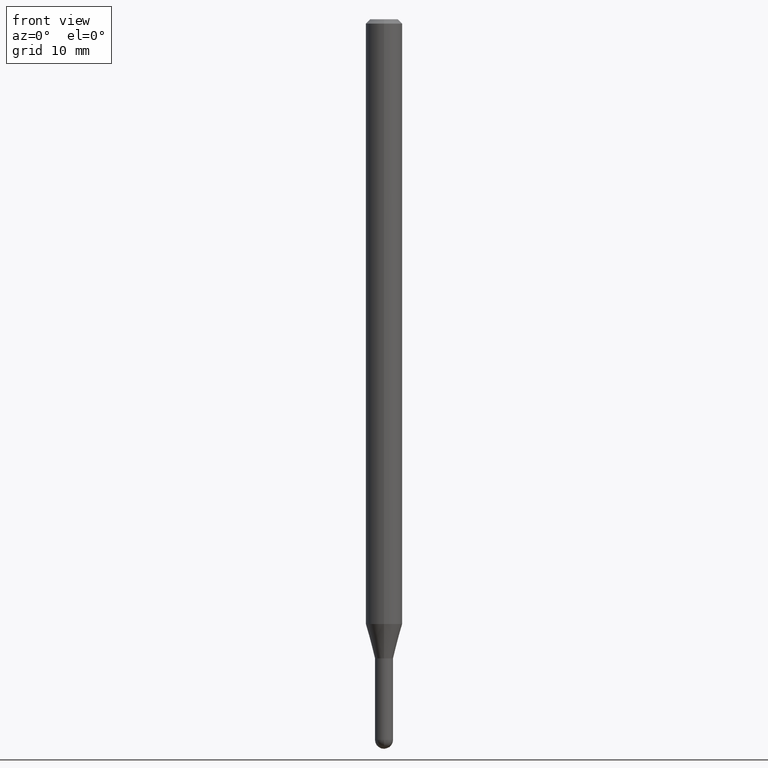
[diagram: clean part render]
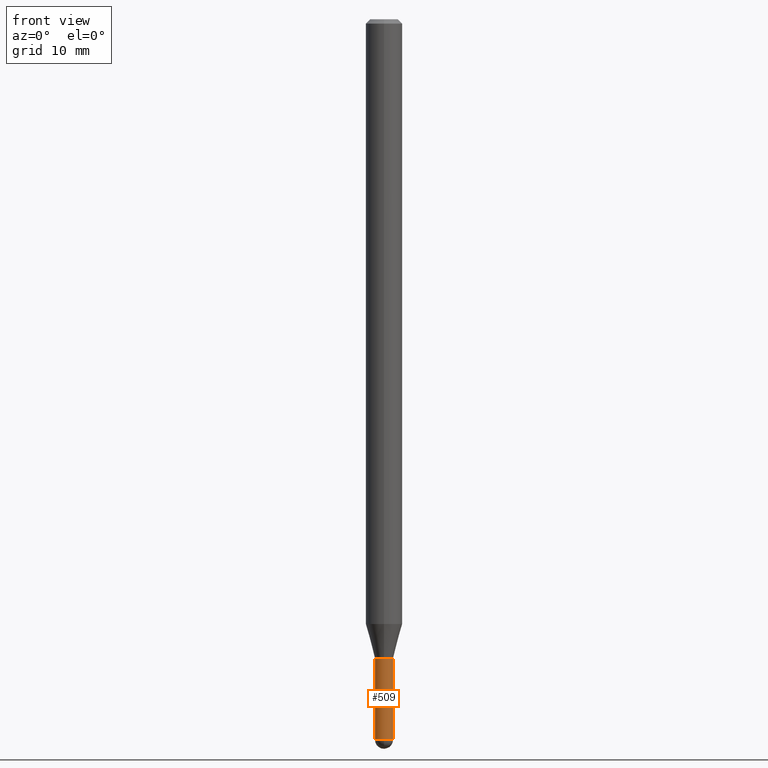
[diagram: same view with one face highlighted and labeled with its STEP entity id]
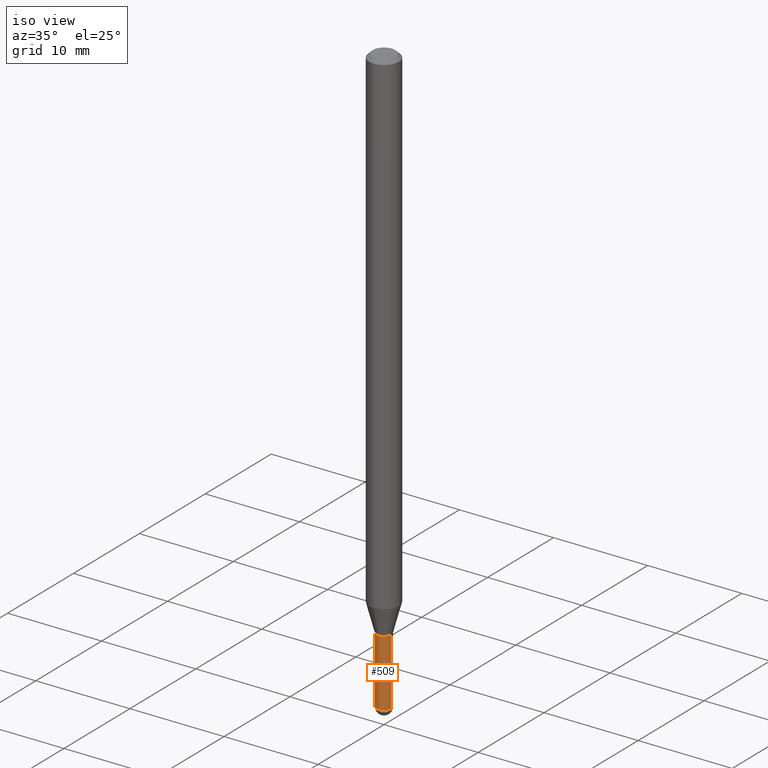
[diagram: same view with one face highlighted and labeled with its STEP entity id]
A machine part, front view. The second image highlights one B-rep face of the part: STEP entity #509.
A second angle (iso view) of the same face is appended — the face is thin or edge-on in the first view.
In plain terms, the highlighted cylindrical surface (edge-blend (fillet) strip) has radius 0.7874 mm, axis along (-0, 0, 1).
Its self-contained STEP definition (entity closure, byte-faithful):
#5 = CARTESIAN_POINT ( 'NONE',  ( -0.03099999999999999978, -7.913137530749477307E-15, -2.469000000000000306 ) ) ;
#8 = ORIENTED_EDGE ( 'NONE', *, *, #152, .T. ) ;
#19 = CIRCLE ( 'NONE', #296, 0.03099999999999999978 ) ;
#23 = VERTEX_POINT ( 'NONE', #305 ) ;
#33 = CIRCLE ( 'NONE', #336, 0.03099999999999999978 ) ;
#35 = VECTOR ( 'NONE', #280, 39.37007874015748143 ) ;
#42 = VERTEX_POINT ( 'NONE', #107 ) ;
#54 = EDGE_CURVE ( 'NONE', #134, #42, #102, .T. ) ;
#59 = CARTESIAN_POINT ( 'NONE',  ( 0.03099999999999999978, -8.349877621843383680E-15, -2.469000000000000306 ) ) ;
#72 = VERTEX_POINT ( 'NONE', #59 ) ;
#101 = ORIENTED_EDGE ( 'NONE', *, *, #450, .F. ) ;
#102 = LINE ( 'NONE', #302, #398 ) ;
#107 = CARTESIAN_POINT ( 'NONE',  ( -0.03099999999999999978, -7.913137530749477307E-15, -2.189999999999999947 ) ) ;
#134 = VERTEX_POINT ( 'NONE', #5 ) ;
#135 = DIRECTION ( 'NONE',  ( 1.000000000000000000, -6.982962677686270655E-15, 0.000000000000000000 ) ) ;
#138 = DIRECTION ( 'NONE',  ( -2.445468806185136597E-29, 3.491481338843145583E-15, 1.000000000000000000 ) ) ;
#141 = CARTESIAN_POINT ( 'NONE',  ( -2.202682480855702151E-16, -0.03100000000000856237, -2.469000000000000306 ) ) ;
#144 = DIRECTION ( 'NONE',  ( 1.000000000000000000, -6.982962677686266711E-15, 4.876176775795935232E-29 ) ) ;
#152 = EDGE_CURVE ( 'NONE', #72, #23, #354, .T. ) ;
#186 = AXIS2_PLACEMENT_3D ( 'NONE', #403, #138, #144 ) ;
#224 = DIRECTION ( 'NONE',  ( -2.445468806185136597E-29, 3.491481338843145583E-15, 1.000000000000000000 ) ) ;
#257 = ORIENTED_EDGE ( 'NONE', *, *, #432, .T. ) ;
#260 = CARTESIAN_POINT ( 'NONE',  ( 6.037862482471103495E-29, -8.620467425603728566E-15, -2.469000000000000306 ) ) ;
#279 = DIRECTION ( 'NONE',  ( 1.000000000000000000, -6.982962677686270655E-15, 0.000000000000000000 ) ) ;
#280 = DIRECTION ( 'NONE',  ( -2.445468806185136877E-29, 3.491481338843145188E-15, 1.000000000000000000 ) ) ;
#293 = ORIENTED_EDGE ( 'NONE', *, *, #441, .T. ) ;
#296 = AXIS2_PLACEMENT_3D ( 'NONE', #260, #224, #279 ) ;
#302 = CARTESIAN_POINT ( 'NONE',  ( -0.03099999999999999978, 2.202682480856310560E-16, -1.524869877979020612E-30 ) ) ;
#305 = CARTESIAN_POINT ( 'NONE',  ( 0.03099999999999999978, -7.862815975074762885E-15, -2.189999999999999947 ) ) ;
#311 = CARTESIAN_POINT ( 'NONE',  ( 0.03099999999999999978, -2.164718430082742572E-16, 1.511614800496739984E-30 ) ) ;
#336 = AXIS2_PLACEMENT_3D ( 'NONE', #466, #356, #460 ) ;
#343 = VERTEX_POINT ( 'NONE', #141 ) ;
#345 = EDGE_LOOP ( 'NONE', ( #366, #293, #257, #8, #101 ) ) ;
#354 = LINE ( 'NONE', #311, #35 ) ;
#356 = DIRECTION ( 'NONE',  ( -2.445468806185136597E-29, 3.491481338843145583E-15, 1.000000000000000000 ) ) ;
#365 = FACE_OUTER_BOUND ( 'NONE', #345, .T. ) ;
#366 = ORIENTED_EDGE ( 'NONE', *, *, #54, .F. ) ;
#372 = CIRCLE ( 'NONE', #434, 0.03099999999999999978 ) ;
#398 = VECTOR ( 'NONE', #471, 39.37007874015748143 ) ;
#403 = CARTESIAN_POINT ( 'NONE',  ( 0.000000000000000000, 0.000000000000000000, 0.000000000000000000 ) ) ;
#432 = EDGE_CURVE ( 'NONE', #343, #72, #33, .T. ) ;
#434 = AXIS2_PLACEMENT_3D ( 'NONE', #510, #451, #135 ) ;
#441 = EDGE_CURVE ( 'NONE', #134, #343, #19, .T. ) ;
#450 = EDGE_CURVE ( 'NONE', #42, #23, #372, .T. ) ;
#451 = DIRECTION ( 'NONE',  ( -2.445468806185136597E-29, 3.491481338843145583E-15, 1.000000000000000000 ) ) ;
#460 = DIRECTION ( 'NONE',  ( 1.000000000000000000, -6.982962677686270655E-15, 0.000000000000000000 ) ) ;
#466 = CARTESIAN_POINT ( 'NONE',  ( 6.037862482471103495E-29, -8.620467425603728566E-15, -2.469000000000000306 ) ) ;
#471 = DIRECTION ( 'NONE',  ( -2.445468806185136877E-29, 3.491481338843145188E-15, 1.000000000000000000 ) ) ;
#496 = CYLINDRICAL_SURFACE ( 'NONE', #186, 0.03099999999999999978 ) ;
#509 = ADVANCED_FACE ( 'NONE', ( #365 ), #496, .T. ) ;
#510 = CARTESIAN_POINT ( 'NONE',  ( 5.355576685545449192E-29, -7.646344132066488554E-15, -2.189999999999999947 ) ) ;